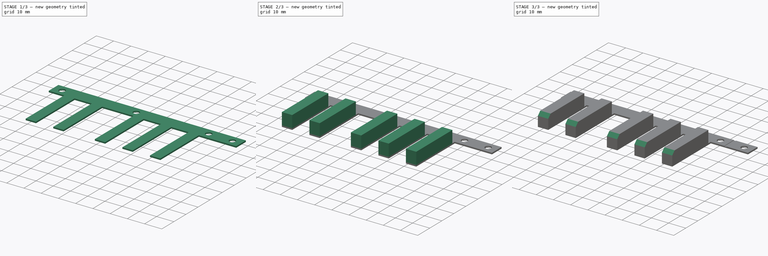
[diagram: build sequence overview — one tinted view per stage of 3, left to right]
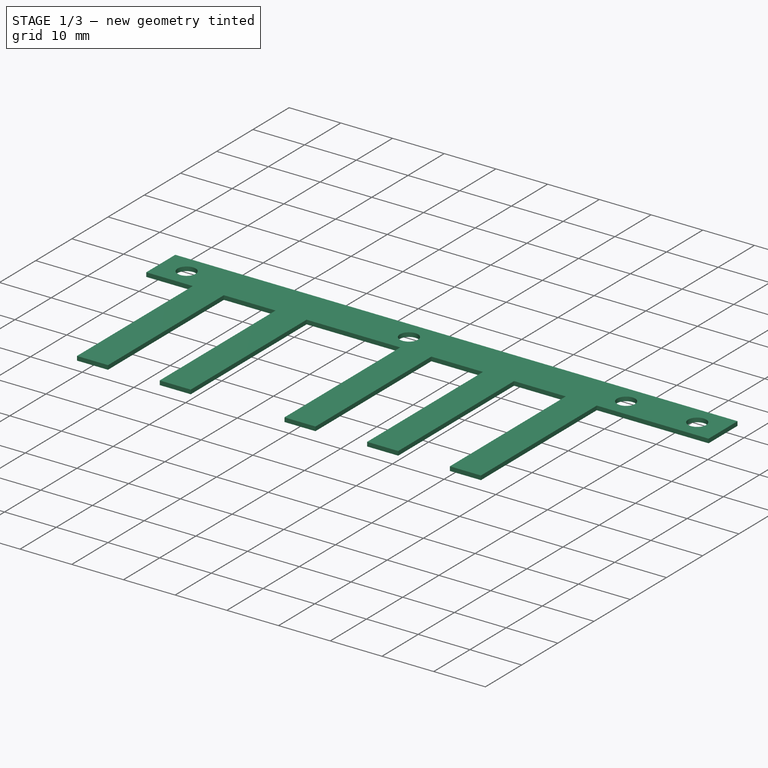
[diagram: stage 1 of 3 — iso view after this stage's code; geometry added in this stage tinted green]
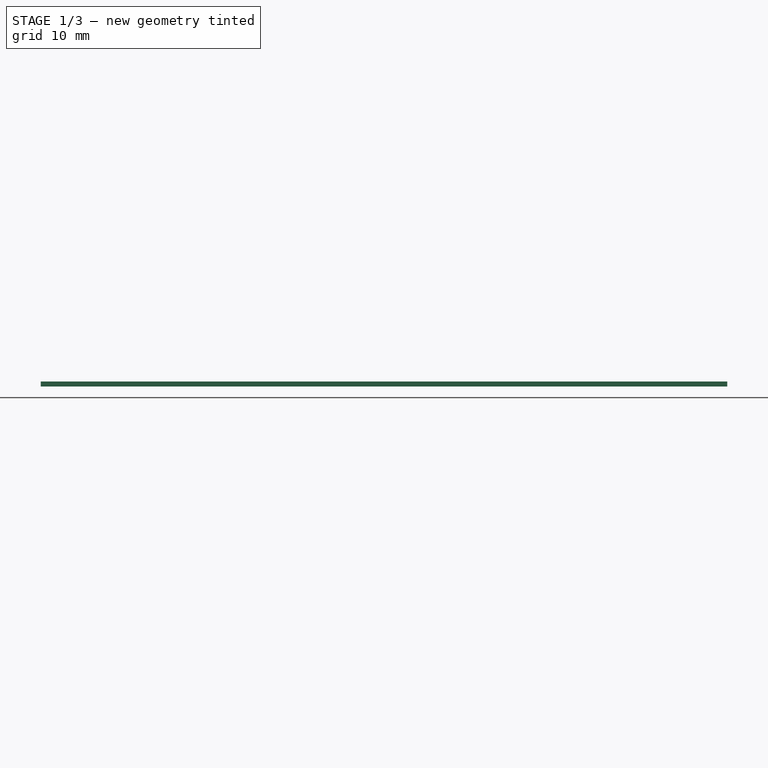
[diagram: stage 1 of 3 — front view after this stage's code; geometry added in this stage tinted green]
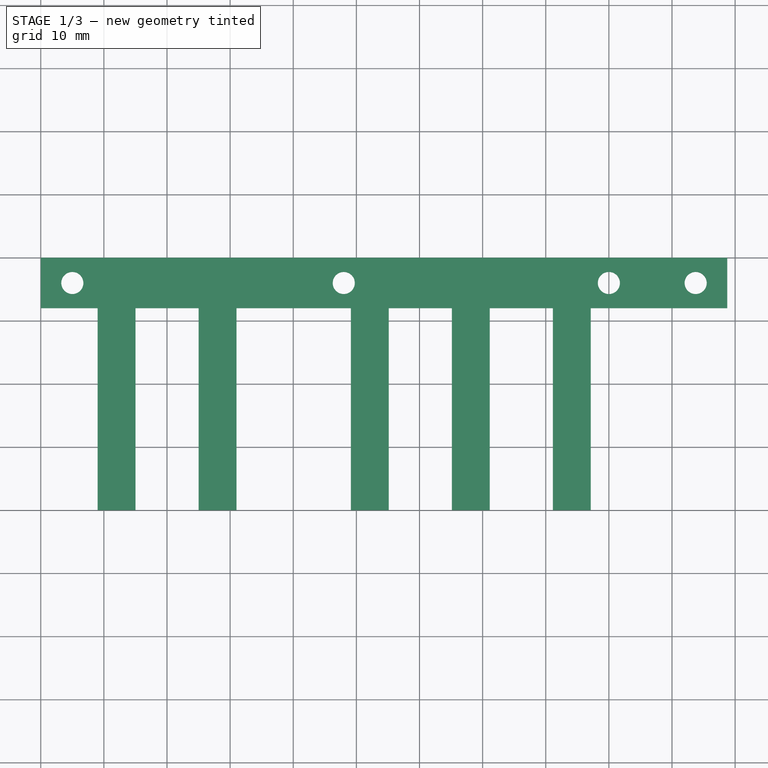
[diagram: stage 1 of 3 — top view after this stage's code; geometry added in this stage tinted green]
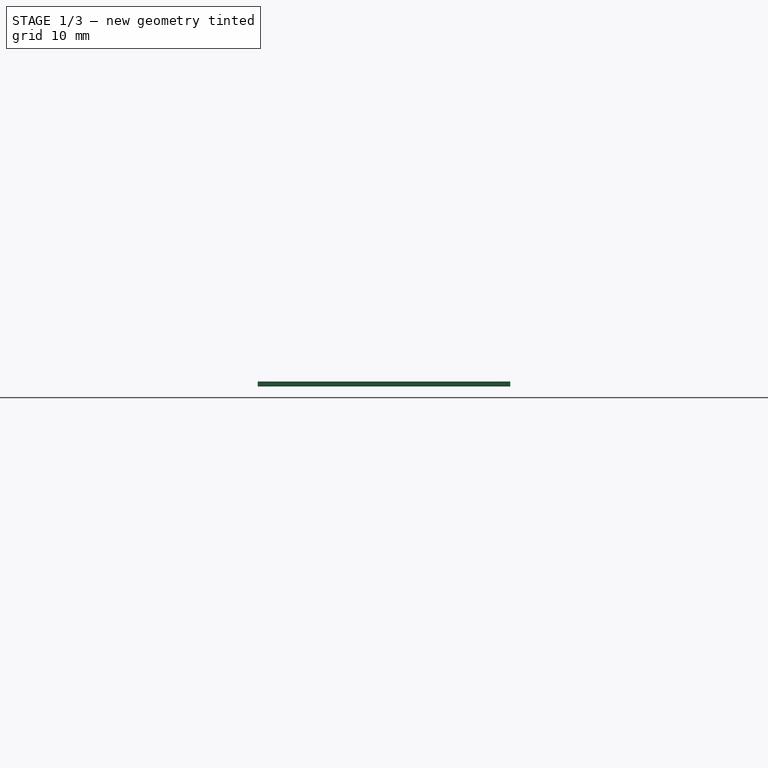
[diagram: stage 1 of 3 — right view after this stage's code; geometry added in this stage tinted green]
FCSTD DOCUMENT  (FreeCAD 1.0R39109 (Git))
Label: black_C_C
License: All rights reserved
LicenseURL: http://en.wikipedia.org/wiki/All_rights_reserved
objects: Sketcher::SketchObject×4, PartDesign::Pad×2, PartDesign::Pocket×2, PartDesign::Chamfer×1, PartDesign::Body×1
note: 24 computed .brp shape members not serialized (recipe doc carries the construction recipe); baked Part::Feature solids carry a one-line shape summary decoded from their .brp

FEATURE [Sketcher::SketchObject] Sketch
  ArcFitTolerance = 0
  AttachmentSupport = -> [XY_Plane]
  FullyConstrained = true
  MakeInternals = false
  MapMode = 5
  sketch-geometry (24):
    g0: LineSegment StartX=49.125 StartY=-8 StartZ=0 EndX=31 EndY=-8 EndZ=0
    g1: LineSegment StartX=31 StartY=-8 StartZ=0 EndX=31 EndY=-40 EndZ=0
    g2: LineSegment StartX=31 StartY=-40 StartZ=0 EndX=25 EndY=-40 EndZ=0
    g3: LineSegment StartX=25 StartY=-40 StartZ=0 EndX=25 EndY=-8 EndZ=0
    g4: LineSegment StartX=25 StartY=-8 StartZ=0 EndX=15 EndY=-8 EndZ=0
    g5: LineSegment StartX=15 StartY=-8 StartZ=0 EndX=15 EndY=-40 EndZ=0
    g6: LineSegment StartX=15 StartY=-40 StartZ=0 EndX=9 EndY=-40 EndZ=0
    g7: LineSegment StartX=9 StartY=-40 StartZ=0 EndX=9 EndY=-8 EndZ=0
    g8: LineSegment StartX=9 StartY=-8 StartZ=0 EndX=7.1e-15 EndY=-8 EndZ=0
    g9: LineSegment StartX=7.1e-15 StartY=-8 StartZ=0 EndX=7.1e-15 EndY=0 EndZ=0
    g10: LineSegment StartX=49.125 StartY=-8 StartZ=0 EndX=49.125 EndY=-40 EndZ=0
    g11: LineSegment StartX=49.125 StartY=-40 StartZ=0 EndX=55.125 EndY=-40 EndZ=0
    g12: LineSegment StartX=55.125 StartY=-40 StartZ=0 EndX=55.125 EndY=-8 EndZ=0
    g13: LineSegment StartX=55.125 StartY=-8 StartZ=0 EndX=65.125 EndY=-8 EndZ=0
    g14: LineSegment StartX=65.125 StartY=-8 StartZ=0 EndX=65.125 EndY=-40 EndZ=0
    g15: LineSegment StartX=65.125 StartY=-40 StartZ=0 EndX=71.125 EndY=-40 EndZ=0
    g16: LineSegment StartX=71.125 StartY=-40 StartZ=0 EndX=71.125 EndY=-8 EndZ=0
    g17: LineSegment StartX=71.125 StartY=-8 StartZ=0 EndX=81.125 EndY=-8 EndZ=0
    g18: LineSegment StartX=81.125 StartY=-8 StartZ=0 EndX=81.125 EndY=-40 EndZ=0
    g19: LineSegment StartX=81.125 StartY=-40 StartZ=0 EndX=87.125 EndY=-40 EndZ=0
    g20: LineSegment StartX=87.125 StartY=-40 StartZ=0 EndX=87.125 EndY=-8 EndZ=0
    g21: LineSegment StartX=87.125 StartY=-8 StartZ=0 EndX=108.75 EndY=-8 EndZ=0
    g22: LineSegment StartX=108.75 StartY=-8 StartZ=0 EndX=108.75 EndY=0 EndZ=0
    g23: LineSegment StartX=7.1e-15 StartY=0 StartZ=0 EndX=108.75 EndY=0 EndZ=0
  constraints (78):
    c: Coincident(g0,g1)
    c: Coincident(g1,g2)
    c: Coincident(g2,g3)
    c: Coincident(g3,g4)
    c: Horizontal(g4)
    c: Coincident(g4,g5)
    c: Coincident(g5,g6)
    c: Horizontal(g6)
    c: Coincident(g6,g7)
    c: Vertical(g7)
    c: Coincident(g7,g8)
    c: Horizontal(g8)
    c: Coincident(g8,g9)
    c: Vertical(g9)
    c: DistanceY(g9,g9) = 8
    c: DistanceX(g8,g8) = 9
    c: DistanceX(g6,g6) = 6
    c: DistanceY(g7,g7) = 32
    c: Vertical(g5)
    c: Vertical(g3)
    c: Horizontal(g0)
    c: Vertical(g1)
    c: Horizontal(g2)
    c: DistanceX(g2,g2) = 6
    c: DistanceY(g5,g5) = 32
    c: DistanceX(g4,g3) = 10
    c: DistanceX(g0,g0) = 18.125
    c: Equal(g5,g3)
    c: Coincident(g10,g0)
    c: Vertical(g10)
    c: Equal(g1,g10)
    c: Coincident(g11,g10)
    c: Horizontal(g11)
    c: DistanceX(g11,g11) = 6
    c: Coincident(g12,g11)
    c: Vertical(g12)
    c: Equal(g10,g12)
    c: Coincident(g13,g12)
    c: Horizontal(g13)
    c: DistanceX(g13,g13) = 10
    c: Coincident(g14,g13)
    c: Vertical(g14)
    c: Equal(g14,g12)
    c: Coincident(g15,g14)
    c: Horizontal(g15)
    c: DistanceX(g15,g15) = 6
    c: Coincident(g16,g15)
    c: Vertical(g16)
    c: Equal(g16,g14)
    c: Coincident(g17,g16)
    c: Horizontal(g17)
    c: DistanceX(g17,g17) = 10
    c: Coincident(g18,g17)
    c: Vertical(g18)
    c: Equal(g18,g16)
    c: Coincident(g19,g18)
    c: Horizontal(g19)
    c: DistanceX(g19,g19) = 6
    c: Coincident(g20,g19)
    c: Vertical(g20)
    c: Equal(g20,g18)
    c: Coincident(g21,g20)
    c: Horizontal(g21)
    c: Coincident(g22,g21)
    c: PointOnObject(g22,g-1)
    c: Vertical(g22)
    c: DistanceX(g9,g22) = 108.75
    c: Coincident(g23,g9)
    c: Coincident(g23,g22)
    c: Horizontal(g23)
    c: Block(g23)
    c: Equal(g1,g3)
    c: DistanceX(g21,g21) = 21.625
    c: DistanceX(g8,g4) = 15
    c: DistanceX(g9,g3) = 25
    c: DistanceX(g9,g0) = 49.125
    c: DistanceX(g9,g13) = 65.125
    c: DistanceX(g9,g17) = 81.125
FEATURE [PartDesign::Pad] Pad  label="底の部分"
  Direction = (0,0,1)
  Length = 0.81
  Length2 = 100
  Profile = -> Sketch
  ReferenceAxis = -> Sketch [N_Axis]
  Suppressed = false
  Type = 0
FEATURE [Sketcher::SketchObject] Sketch001  label="ネジ穴"
  ArcFitTolerance = 0
  AttachmentSupport = -> [Pad]
  ExternalGeometry = -> [Pad]
  FullyConstrained = true
  MakeInternals = false
  MapMode = 5
  Placement = pos=(0,0,0.81) rot=(0,0,1;0rad)
  sketch-geometry (4):
    g0: Circle CenterX=5 CenterY=-4 CenterZ=0 NormalX=0 NormalY=0 NormalZ=1 AngleXU=0 Radius=1.75
    g1: Circle CenterX=48 CenterY=-4 CenterZ=0 NormalX=0 NormalY=0 NormalZ=1 AngleXU=0 Radius=1.75
    g2: Circle CenterX=90 CenterY=-4 CenterZ=0 NormalX=0 NormalY=0 NormalZ=1 AngleXU=0 Radius=1.75
    g3: Circle CenterX=103.75 CenterY=-4 CenterZ=0 NormalX=0 NormalY=0 NormalZ=1 AngleXU=0 Radius=1.75
  constraints (16):
    c: Equal(g0,g1)
    c: Equal(g0,g2)
    c: Equal(g0,g3)
    c: Diameter(g0) = 3.5
    c: DistanceX(g-1,g0) = 5
    c: DistanceY(g0,g-1) = 4
    c: DistanceX(g-1,g1) = 48
    c: DistanceY(g1,g-1) = 4
    c: DistanceX(g2,g-4) = 18.75
    c: DistanceY(g2,g-4) = 4
    c: DistanceY(g3,g-4) = 4
    c: DistanceX(g3,g-4) = 5
    c: DistanceY(g-6,g0) = 36
    c: DistanceX(g1,g2) = 42
    c: DistanceX(g2,g3) = 13.75
    c: DistanceX(g0,g1) = 43
FEATURE [PartDesign::Pocket] Pocket
  BaseFeature = -> Pad
  Direction = (0,0,-1)
  Length = 5
  Length2 = 5
  Profile = -> Sketch001
  ReferenceAxis = -> Sketch001 [N_Axis]
  Suppressed = false
  Type = 0
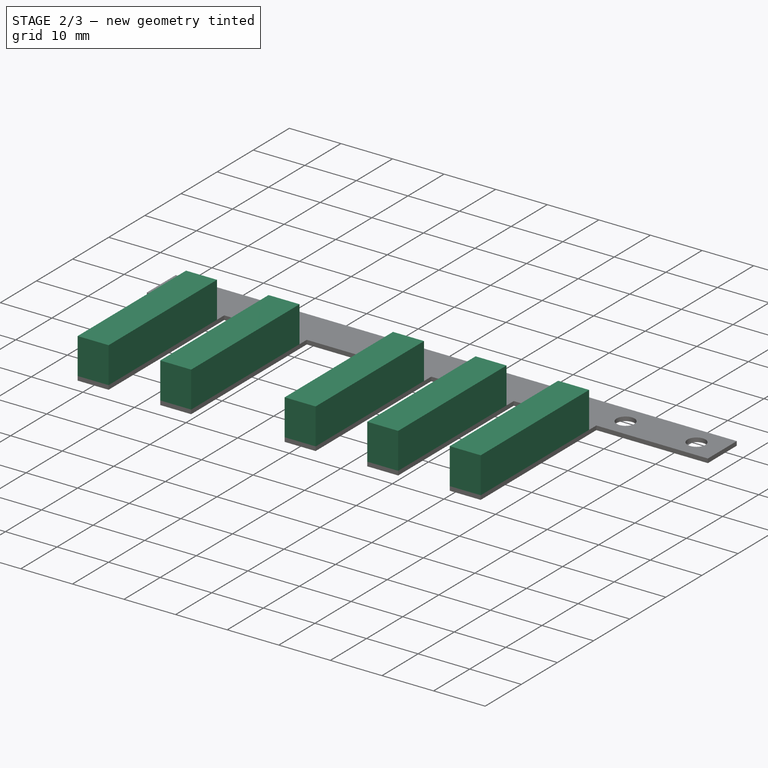
[diagram: stage 2 of 3 — iso view after this stage's code; geometry added in this stage tinted green]
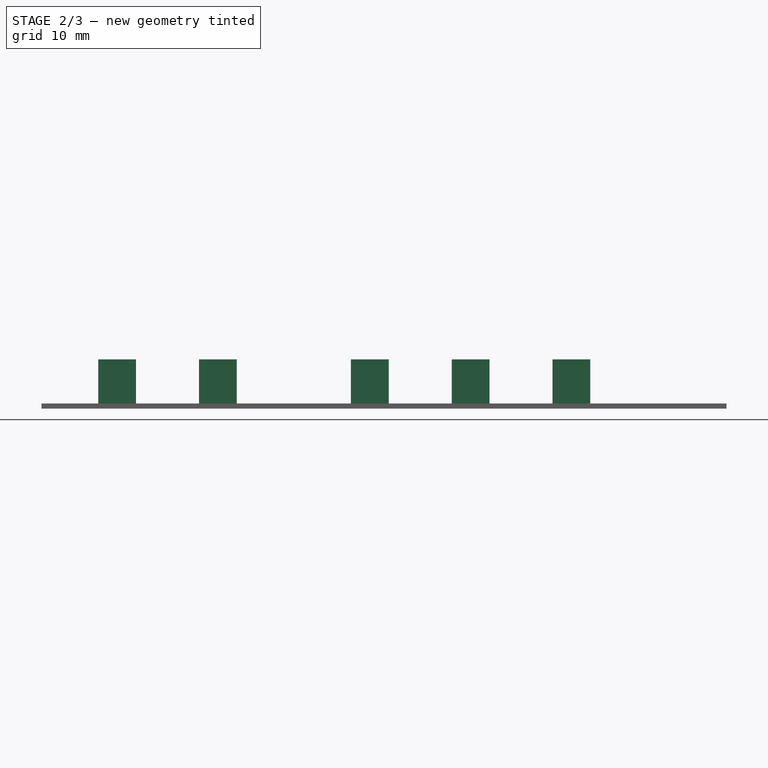
[diagram: stage 2 of 3 — front view after this stage's code; geometry added in this stage tinted green]
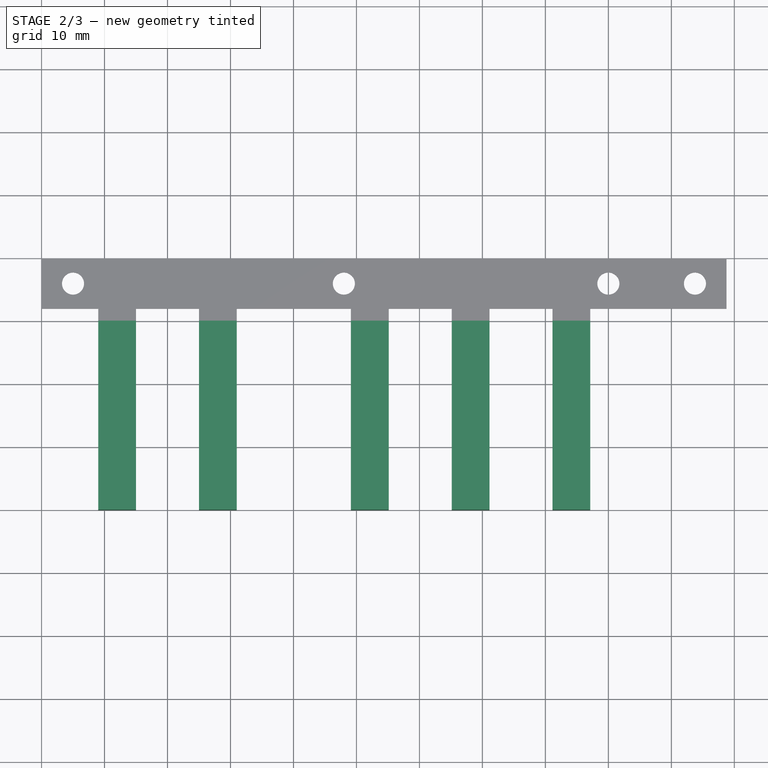
[diagram: stage 2 of 3 — top view after this stage's code; geometry added in this stage tinted green]
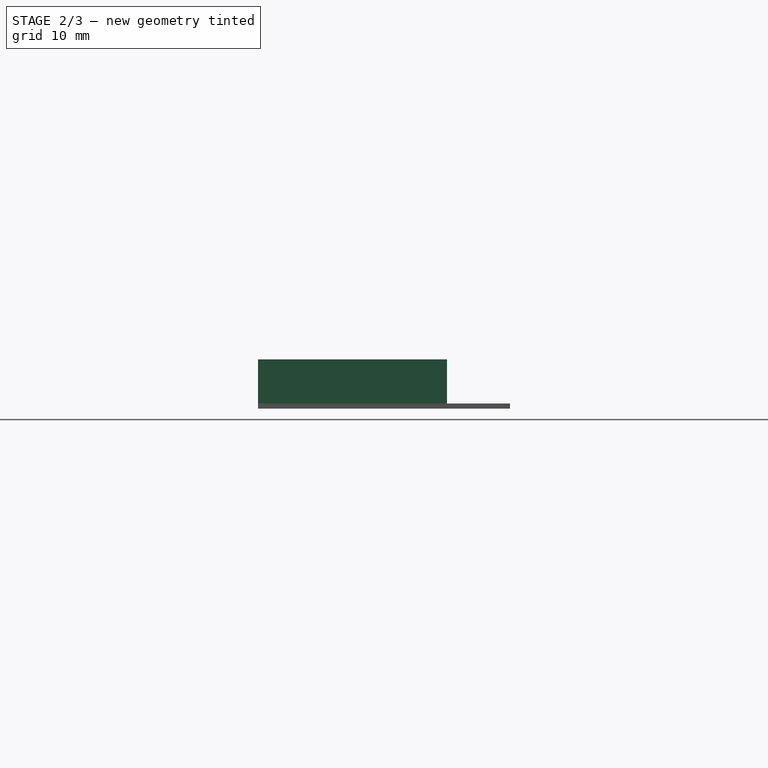
[diagram: stage 2 of 3 — right view after this stage's code; geometry added in this stage tinted green]
FEATURE [Sketcher::SketchObject] Sketch002  label="もりあがるところ スケッチ"
  ArcFitTolerance = 0
  AttachmentSupport = -> [Pocket]
  ExternalGeometry = -> [Pocket]
  FullyConstrained = true
  MakeInternals = false
  MapMode = 5
  Placement = pos=(0,0,0.81) rot=(0,0,1;0rad)
  sketch-geometry (20):
    g0: LineSegment StartX=9 StartY=-10 StartZ=0 EndX=9 EndY=-40 EndZ=0
    g1: LineSegment StartX=9 StartY=-40 StartZ=0 EndX=15 EndY=-40 EndZ=0
    g2: LineSegment StartX=15 StartY=-40 StartZ=0 EndX=15 EndY=-10 EndZ=0
    g3: LineSegment StartX=15 StartY=-10 StartZ=0 EndX=9 EndY=-10 EndZ=0
    g4: LineSegment StartX=25 StartY=-10 StartZ=0 EndX=25 EndY=-40 EndZ=0
    g5: LineSegment StartX=25 StartY=-40 StartZ=0 EndX=31 EndY=-40 EndZ=0
    g6: LineSegment StartX=31 StartY=-40 StartZ=0 EndX=31 EndY=-10 EndZ=0
    g7: LineSegment StartX=31 StartY=-10 StartZ=0 EndX=25 EndY=-10 EndZ=0
    g8: LineSegment StartX=49.125 StartY=-10 StartZ=0 EndX=49.125 EndY=-40 EndZ=0
    g9: LineSegment StartX=49.125 StartY=-40 StartZ=0 EndX=55.125 EndY=-40 EndZ=0
    g10: LineSegment StartX=55.125 StartY=-40 StartZ=0 EndX=55.125 EndY=-10 EndZ=0
    g11: LineSegment StartX=55.125 StartY=-10 StartZ=0 EndX=49.125 EndY=-10 EndZ=0
    g12: LineSegment StartX=65.125 StartY=-10 StartZ=0 EndX=65.125 EndY=-40 EndZ=0
    g13: LineSegment StartX=65.125 StartY=-40 StartZ=0 EndX=71.125 EndY=-40 EndZ=0
    g14: LineSegment StartX=71.125 StartY=-40 StartZ=0 EndX=71.125 EndY=-10 EndZ=0
    g15: LineSegment StartX=71.125 StartY=-10 StartZ=0 EndX=65.125 EndY=-10 EndZ=0
    g16: LineSegment StartX=81.125 StartY=-10 StartZ=0 EndX=81.125 EndY=-40 EndZ=0
    g17: LineSegment StartX=81.125 StartY=-40 StartZ=0 EndX=87.125 EndY=-40 EndZ=0
    g18: LineSegment StartX=87.125 StartY=-40 StartZ=0 EndX=87.125 EndY=-10 EndZ=0
    g19: LineSegment StartX=87.125 StartY=-10 StartZ=0 EndX=81.125 EndY=-10 EndZ=0
  constraints (50):
    c: PointOnObject(g0,g-5)
    c: Coincident(g0,g-5)
    c: Coincident(g0,g1)
    c: Coincident(g1,g-6)
    c: Coincident(g1,g2)
    c: PointOnObject(g2,g-6)
    c: Coincident(g2,g3)
    c: Coincident(g3,g0)
    c: Horizontal(g3)
    c: DistanceY(g0,g-3) = 10
    c: PointOnObject(g4,g-8)
    c: Coincident(g4,g-8)
    c: Coincident(g4,g5)
    c: Coincident(g5,g-9)
    c: Coincident(g5,g6)
    c: PointOnObject(g6,g-9)
    c: Coincident(g6,g7)
    c: Coincident(g7,g4)
    c: Equal(g2,g4)
    c: Equal(g6,g4)
    c: PointOnObject(g8,g-11)
    c: Coincident(g8,g-11)
    c: Coincident(g8,g9)
    c: Coincident(g9,g-12)
    c: Coincident(g9,g10)
    c: PointOnObject(g10,g-12)
    c: Coincident(g10,g11)
    c: Coincident(g11,g8)
    c: Horizontal(g11)
    c: Equal(g6,g8)
    c: PointOnObject(g12,g-13)
    c: Coincident(g12,g-13)
    c: Coincident(g12,g13)
    c: Coincident(g13,g-14)
    c: Coincident(g13,g14)
    c: PointOnObject(g14,g-14)
    c: Coincident(g14,g15)
    c: Coincident(g15,g12)
    c: Equal(g10,g12)
    c: Equal(g12,g14)
    c: PointOnObject(g16,g-15)
    c: Coincident(g16,g-15)
    c: Coincident(g16,g17)
    c: Coincident(g17,g-16)
    c: Coincident(g17,g18)
    c: PointOnObject(g18,g-16)
    c: Coincident(g18,g19)
    c: Coincident(g19,g16)
    c: Equal(g14,g16)
    c: Equal(g16,g18)
FEATURE [PartDesign::Pad] Pad001  label="もりあがるところ Pad"
  BaseFeature = -> Pocket
  Direction = (0,0,1)
  Length = 7
  Length2 = 10
  Profile = -> Sketch002
  ReferenceAxis = -> Sketch002 [N_Axis]
  Suppressed = false
  Type = 0
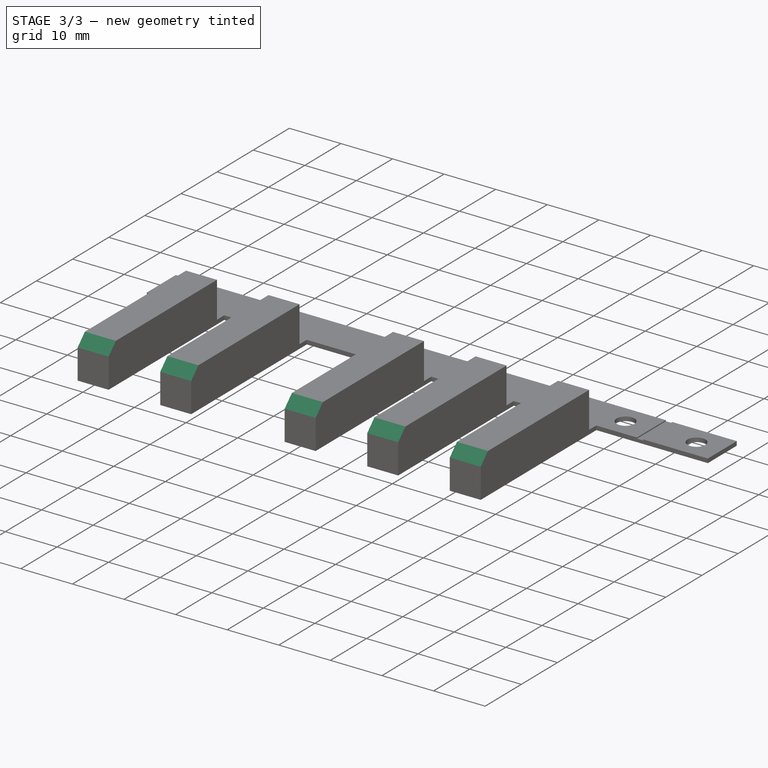
[diagram: stage 3 of 3 — iso view after this stage's code; geometry added in this stage tinted green]
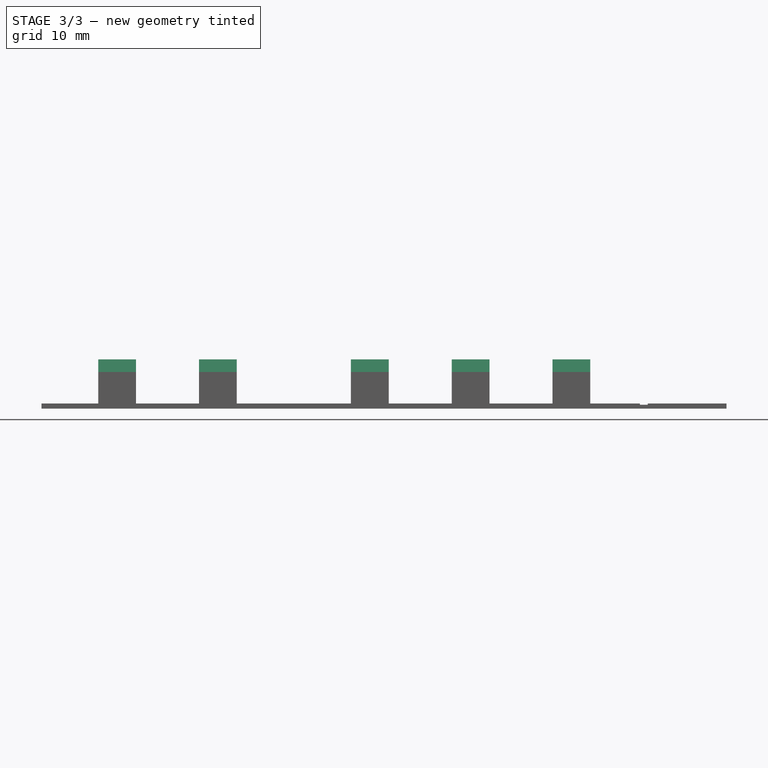
[diagram: stage 3 of 3 — front view after this stage's code; geometry added in this stage tinted green]
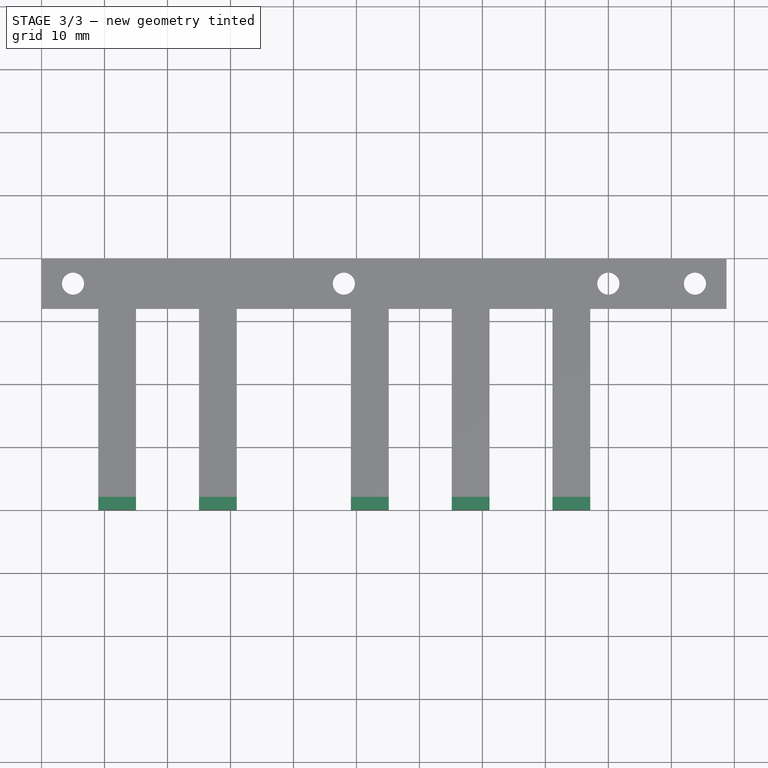
[diagram: stage 3 of 3 — top view after this stage's code; geometry added in this stage tinted green]
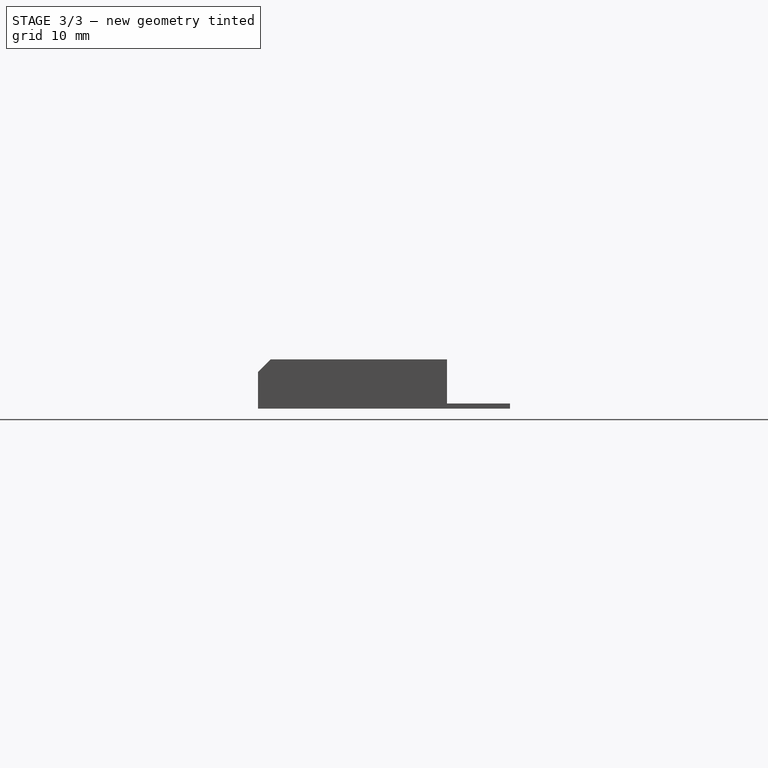
[diagram: stage 3 of 3 — right view after this stage's code; geometry added in this stage tinted green]
FEATURE [PartDesign::Chamfer] Chamfer
  Angle = 45
  Base = -> Pad001 [Edge132,Edge123,Edge120,Edge130,Edge138]
  BaseFeature = -> Pad001
  ChamferType = 0
  FlipDirection = false
  Size = 2
  Size2 = 1
  SupportTransform = false
  Suppressed = false
  UseAllEdges = false
FEATURE [Sketcher::SketchObject] Sketch003  label="切りとり"
  ArcFitTolerance = 0
  AttachmentSupport = -> [Chamfer]
  ExternalGeometry = -> [Chamfer]
  FullyConstrained = true
  MakeInternals = false
  MapMode = 5
  Placement = pos=(0,0,0.81) rot=(0,0,1;0rad)
  sketch-geometry (4):
    g0: LineSegment StartX=95 StartY=0 StartZ=0 EndX=95 EndY=-8 EndZ=0
    g1: LineSegment StartX=95 StartY=-8 StartZ=0 EndX=96.25 EndY=-8 EndZ=0
    g2: LineSegment StartX=96.25 StartY=-8 StartZ=0 EndX=96.25 EndY=0 EndZ=0
    g3: LineSegment StartX=96.25 StartY=0 StartZ=0 EndX=95 EndY=0 EndZ=0
  constraints (12):
    c: PointOnObject(g0,g-1)
    c: PointOnObject(g0,g-5)
    c: Vertical(g0)
    c: Coincident(g0,g1)
    c: PointOnObject(g1,g-5)
    c: Coincident(g1,g2)
    c: PointOnObject(g2,g-1)
    c: Vertical(g2)
    c: Coincident(g2,g3)
    c: Coincident(g3,g0)
    c: DistanceX(g3,g3) = 1.25
    c: DistanceX(g-1,g0) = 95
FEATURE [PartDesign::Pocket] Pocket001
  BaseFeature = -> Chamfer
  Direction = (0,0,-1)
  Length = 0.2
  Length2 = 5
  Profile = -> Sketch003
  ReferenceAxis = -> Sketch003 [N_Axis]
  Suppressed = false
  Type = 0
  UseCustomVector = true
FEATURE [PartDesign::Body] Body
  AllowCompound = false
  Group = -> [Sketch,Pad,Sketch001,Pocket,Sketch002,Pad001,Chamfer,Sketch003,Pocket001]
  Origin = -> Origin
  Tip = -> Pocket001
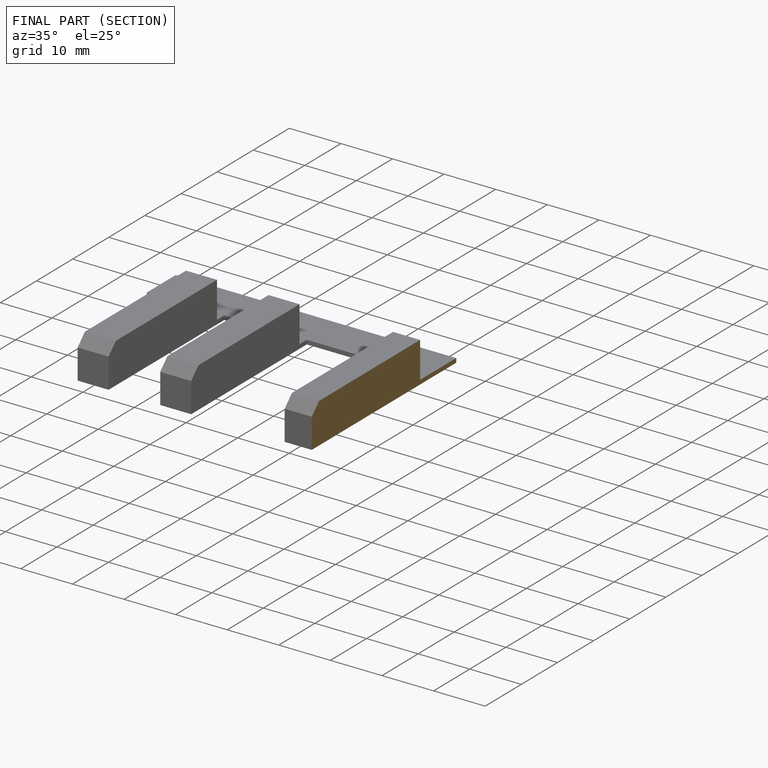
[diagram: finished part — half-section view (interior)]
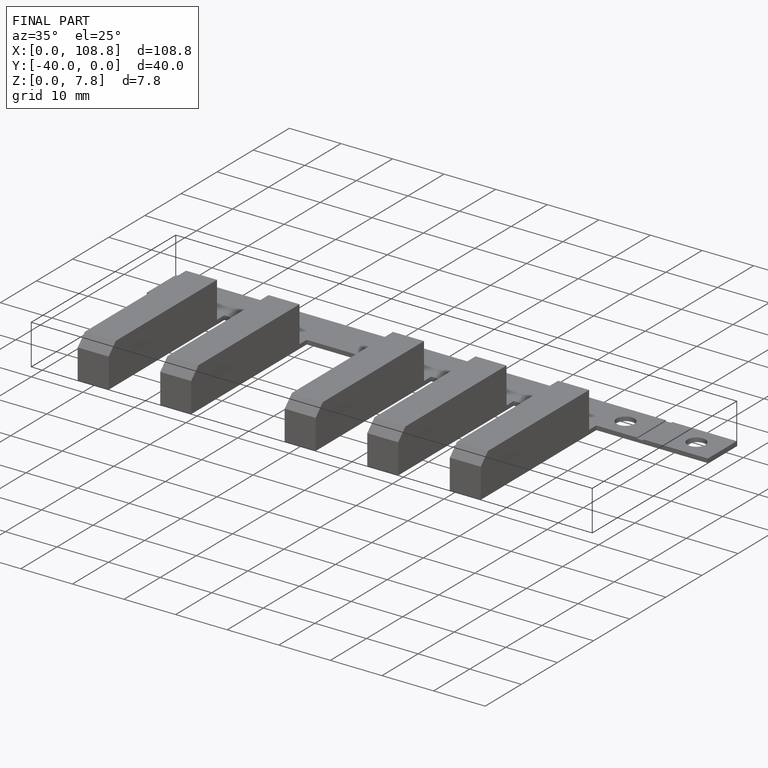
[diagram: finished part — iso view with bounding-box wireframe]
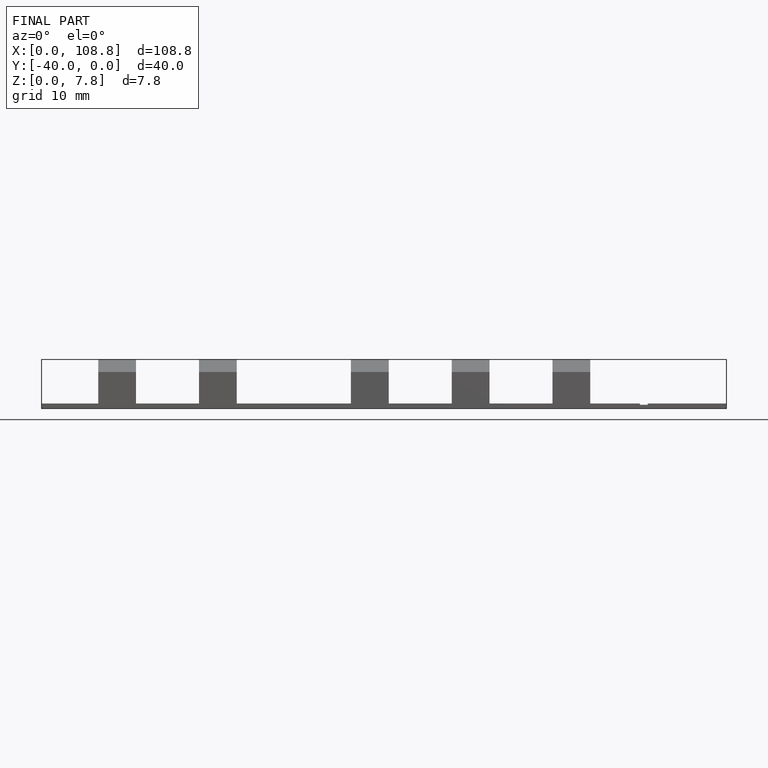
[diagram: finished part — front view with bounding-box wireframe]
